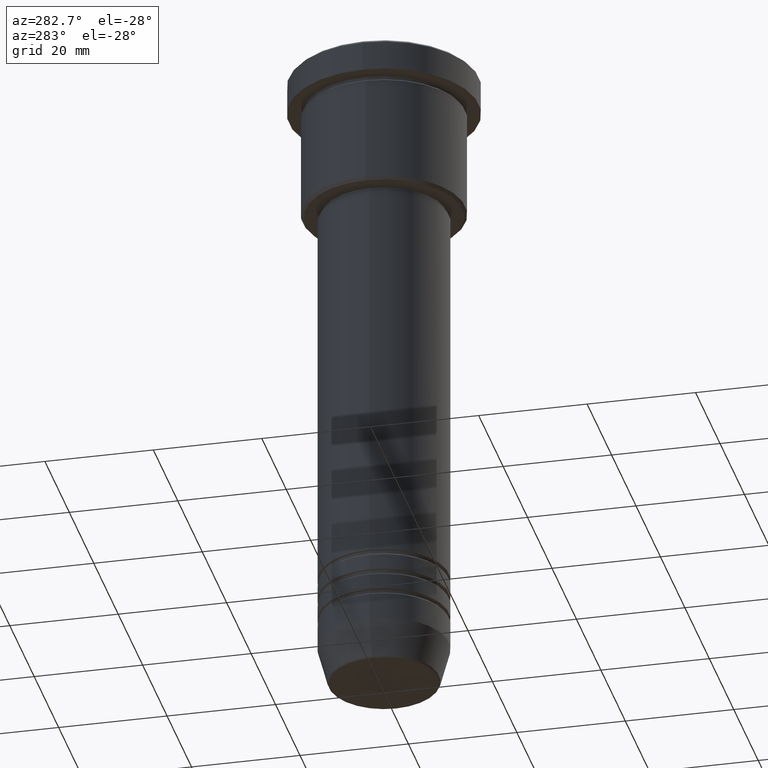
[diagram: clean part render]
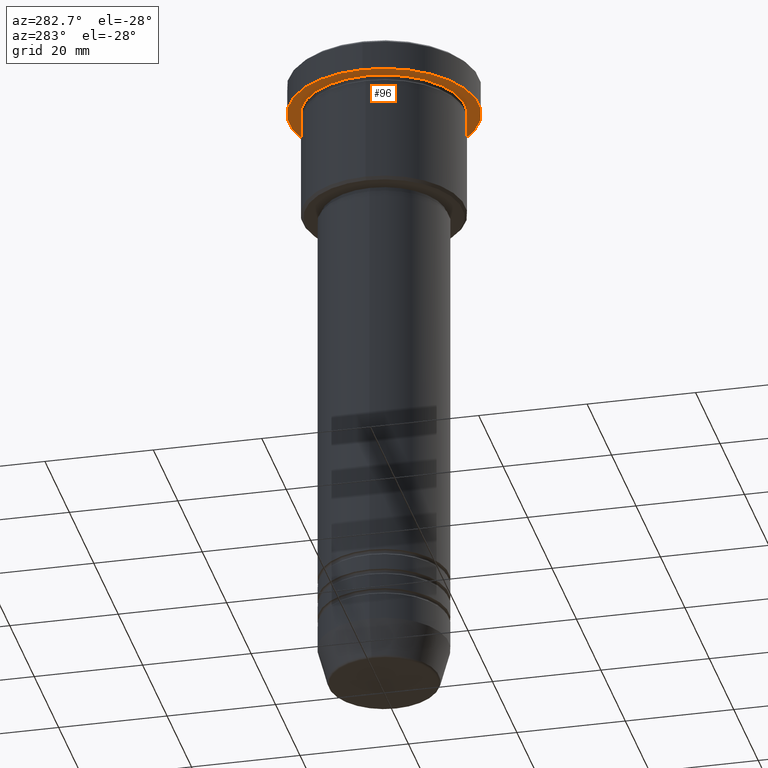
[diagram: same view with one face highlighted and labeled with its STEP entity id]
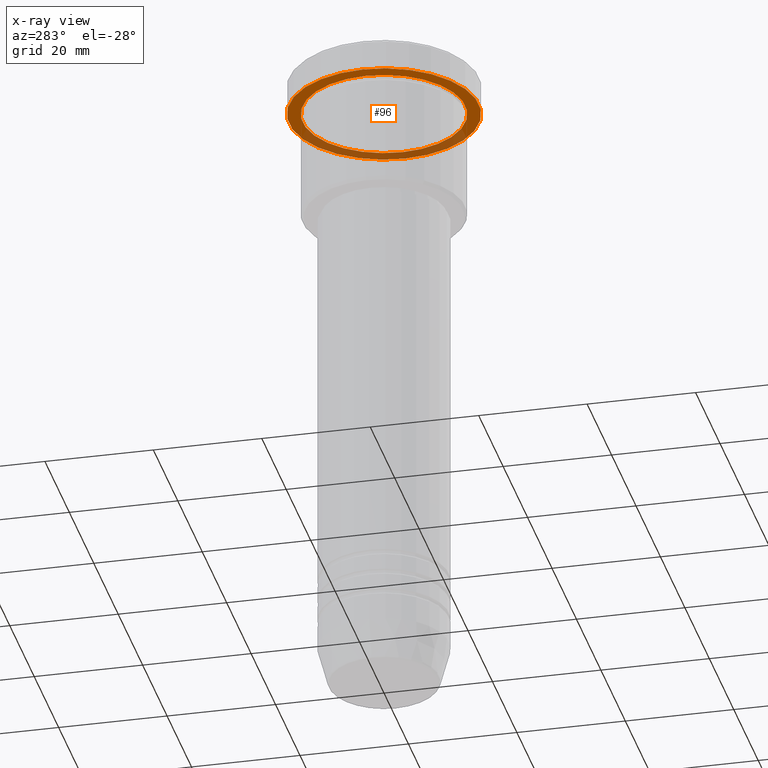
[diagram: x-ray of the same camera — body ghosted, the highlighted face saturated]
A machine part, auxiliary view. The second image highlights one B-rep face of the part: STEP entity #96.
The next image is the same camera in x-ray: the body ghosted, the highlighted face saturated — about 35% of this face is hidden behind the body in this view.
In plain terms, the highlighted planar face has unit normal (0, 0, -1).
Its self-contained STEP definition (entity closure, byte-faithful):
#26 = VERTEX_POINT ( 'NONE', #1093 ) ;
#44 = EDGE_LOOP ( 'NONE', ( #507, #1044 ) ) ;
#81 = CIRCLE ( 'NONE', #737, 15.00000000000000000 ) ;
#86 = EDGE_LOOP ( 'NONE', ( #967, #1051 ) ) ;
#93 = DIRECTION ( 'NONE',  ( 0.000000000000000000, 0.000000000000000000, -1.000000000000000000 ) ) ;
#96 = ADVANCED_FACE ( 'NONE', ( #820, #1016 ), #278, .T. ) ;
#110 = EDGE_CURVE ( 'NONE', #690, #219, #550, .T. ) ;
#111 = CARTESIAN_POINT ( 'NONE',  ( 0.000000000000000000, 0.000000000000000000, -5.999999999999995559 ) ) ;
#219 = VERTEX_POINT ( 'NONE', #673 ) ;
#261 = VERTEX_POINT ( 'NONE', #852 ) ;
#269 = DIRECTION ( 'NONE',  ( -1.000000000000000000, 0.000000000000000000, -0.000000000000000000 ) ) ;
#278 = PLANE ( 'NONE',  #534 ) ;
#316 = AXIS2_PLACEMENT_3D ( 'NONE', #918, #1097, #444 ) ;
#328 = EDGE_CURVE ( 'NONE', #219, #690, #81, .T. ) ;
#339 = CARTESIAN_POINT ( 'NONE',  ( 0.000000000000000000, 0.000000000000000000, -5.999999999999995559 ) ) ;
#342 = CIRCLE ( 'NONE', #616, 17.50000000000000000 ) ;
#381 = DIRECTION ( 'NONE',  ( -0.000000000000000000, -0.000000000000000000, 1.000000000000000000 ) ) ;
#429 = DIRECTION ( 'NONE',  ( -1.000000000000000000, 0.000000000000000000, 0.000000000000000000 ) ) ;
#444 = DIRECTION ( 'NONE',  ( -1.000000000000000000, 0.000000000000000000, 0.000000000000000000 ) ) ;
#507 = ORIENTED_EDGE ( 'NONE', *, *, #1149, .F. ) ;
#534 = AXIS2_PLACEMENT_3D ( 'NONE', #735, #93, #269 ) ;
#550 = CIRCLE ( 'NONE', #316, 15.00000000000000000 ) ;
#616 = AXIS2_PLACEMENT_3D ( 'NONE', #111, #381, #1040 ) ;
#673 = CARTESIAN_POINT ( 'NONE',  ( 15.00000000000000000, 1.836970198721029589E-15, -5.999999999999994671 ) ) ;
#690 = VERTEX_POINT ( 'NONE', #818 ) ;
#735 = CARTESIAN_POINT ( 'NONE',  ( 0.000000000000000000, 17.50000000000000000, -5.999999999999995559 ) ) ;
#737 = AXIS2_PLACEMENT_3D ( 'NONE', #1133, #1062, #429 ) ;
#818 = CARTESIAN_POINT ( 'NONE',  ( -15.00000000000000000, 0.000000000000000000, -5.999999999999994671 ) ) ;
#820 = FACE_BOUND ( 'NONE', #86, .T. ) ;
#852 = CARTESIAN_POINT ( 'NONE',  ( 17.50000000000000000, 0.000000000000000000, -5.999999999999995559 ) ) ;
#868 = DIRECTION ( 'NONE',  ( 1.000000000000000000, 0.000000000000000000, 0.000000000000000000 ) ) ;
#901 = DIRECTION ( 'NONE',  ( -0.000000000000000000, -0.000000000000000000, 1.000000000000000000 ) ) ;
#918 = CARTESIAN_POINT ( 'NONE',  ( 0.000000000000000000, 0.000000000000000000, -5.999999999999995559 ) ) ;
#967 = ORIENTED_EDGE ( 'NONE', *, *, #110, .T. ) ;
#1016 = FACE_OUTER_BOUND ( 'NONE', #44, .T. ) ;
#1018 = CIRCLE ( 'NONE', #1107, 17.50000000000000000 ) ;
#1040 = DIRECTION ( 'NONE',  ( 1.000000000000000000, 0.000000000000000000, 0.000000000000000000 ) ) ;
#1044 = ORIENTED_EDGE ( 'NONE', *, *, #1083, .F. ) ;
#1051 = ORIENTED_EDGE ( 'NONE', *, *, #328, .T. ) ;
#1062 = DIRECTION ( 'NONE',  ( -0.000000000000000000, -0.000000000000000000, 1.000000000000000000 ) ) ;
#1083 = EDGE_CURVE ( 'NONE', #26, #261, #342, .T. ) ;
#1093 = CARTESIAN_POINT ( 'NONE',  ( -17.50000000000000000, 2.143131898507868248E-15, -5.999999999999995559 ) ) ;
#1097 = DIRECTION ( 'NONE',  ( -0.000000000000000000, -0.000000000000000000, 1.000000000000000000 ) ) ;
#1107 = AXIS2_PLACEMENT_3D ( 'NONE', #339, #901, #868 ) ;
#1133 = CARTESIAN_POINT ( 'NONE',  ( 0.000000000000000000, 0.000000000000000000, -5.999999999999995559 ) ) ;
#1149 = EDGE_CURVE ( 'NONE', #261, #26, #1018, .T. ) ;